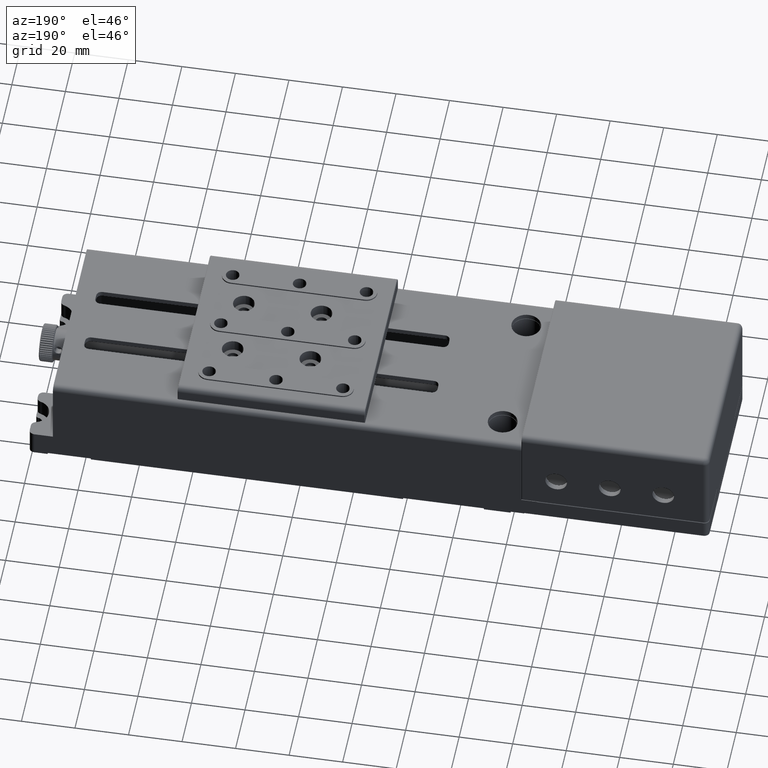
[diagram: clean part render]
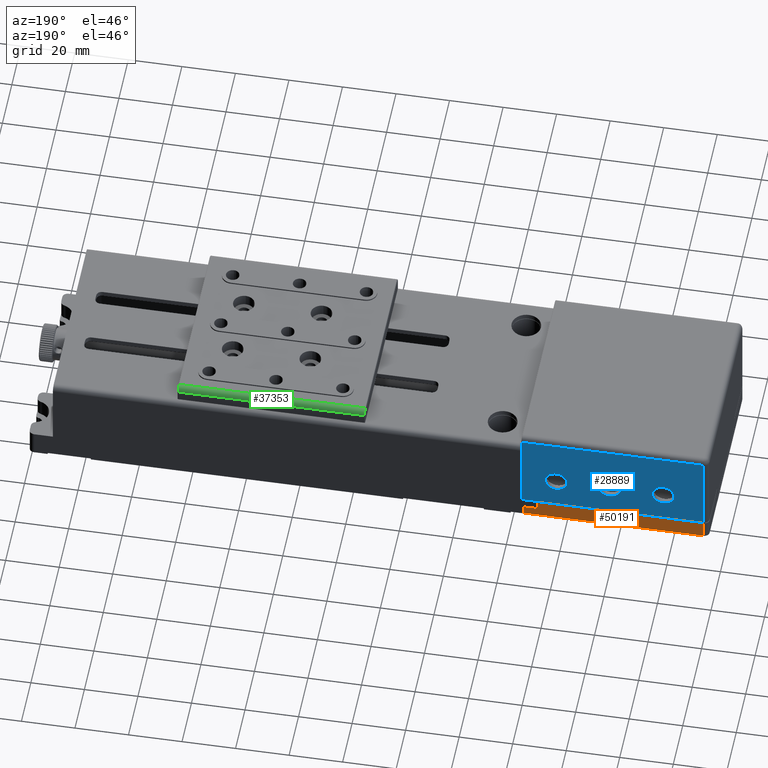
[diagram: same view with three faces highlighted in distinct colors, each labeled with its STEP entity id]
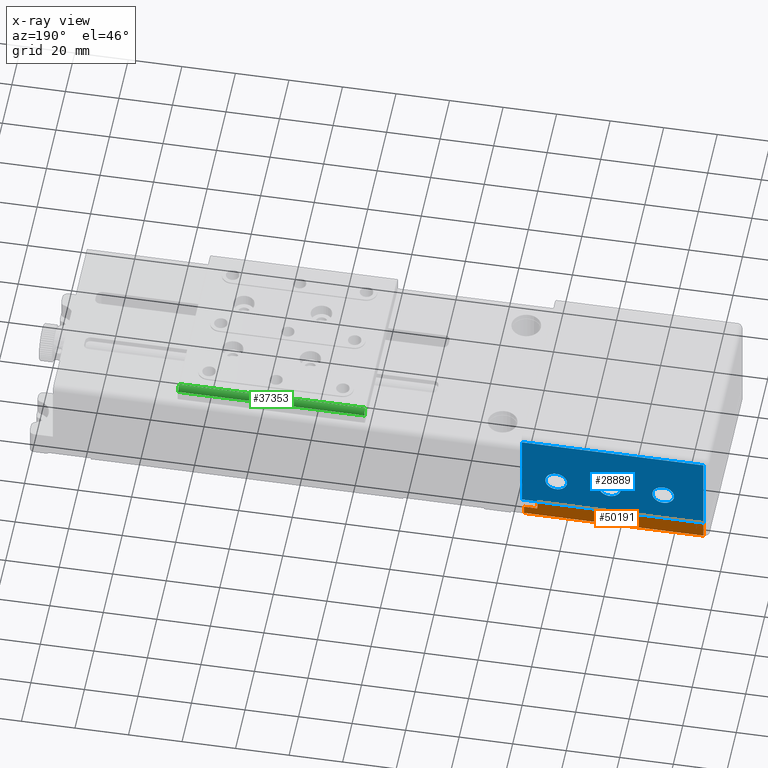
[diagram: x-ray of the same camera — body ghosted, the three highlighted faces saturated]
A machine part, auxiliary view with three faces highlighted in distinct colors.
The next image is the same camera in x-ray (body ghosted, the three faces saturated) — at least one of them is partly hidden behind the body in this view.
Their STEP definitions:

[orange] entity #50191 — the highlighted planar face has unit normal (-0, -1, 0).
#337 = CARTESIAN_POINT ( 'NONE',  ( -151.4252599814024904, 27.53080254974724994, 1.800000000000000044 ) ) ;
#6512 = DIRECTION ( 'NONE',  ( -1.000000000000000000, 1.665334536937734811E-16, 0.000000000000000000 ) ) ;
#7550 = FACE_OUTER_BOUND ( 'NONE', #31158, .T. ) ;
#7726 = CARTESIAN_POINT ( 'NONE',  ( -151.4252599814024904, 27.53080254974724994, -4.799999999999999822 ) ) ;
#9102 = LINE ( 'NONE', #60808, #10324 ) ;
#10324 = VECTOR ( 'NONE', #30270, 1000.000000000000000 ) ;
#12474 = EDGE_CURVE ( 'NONE', #27321, #25437, #15136, .T. ) ;
#13552 = EDGE_CURVE ( 'NONE', #51105, #53263, #31952, .T. ) ;
#15136 = LINE ( 'NONE', #20697, #52377 ) ;
#15200 = VERTEX_POINT ( 'NONE', #68681 ) ;
#18402 = CARTESIAN_POINT ( 'NONE',  ( -84.42525998140229149, 27.53080254974724994, -1.500000000000000000 ) ) ;
#20697 = CARTESIAN_POINT ( 'NONE',  ( -89.42525998140230570, 27.53080254974724994, -5.000000000000000000 ) ) ;
#22549 = EDGE_CURVE ( 'NONE', #36892, #15200, #49562, .T. ) ;
#22868 = DIRECTION ( 'NONE',  ( -1.398089456019985815E-17, 4.930380657631319405E-32, 1.000000000000000000 ) ) ;
#22923 = DIRECTION ( 'NONE',  ( -1.000000000000000000, 1.224646799147351975E-16, -1.398089456019987972E-17 ) ) ;
#24046 = CARTESIAN_POINT ( 'NONE',  ( -84.42525998140229149, 27.53080254974724994, -4.799999999999999822 ) ) ;
#24617 = ORIENTED_EDGE ( 'NONE', *, *, #22549, .F. ) ;
#24857 = VECTOR ( 'NONE', #48580, 1000.000000000000000 ) ;
#25437 = VERTEX_POINT ( 'NONE', #51427 ) ;
#27321 = VERTEX_POINT ( 'NONE', #43081 ) ;
#29024 = ORIENTED_EDGE ( 'NONE', *, *, #13552, .T. ) ;
#29498 = DIRECTION ( 'NONE',  ( 1.000000000000000000, 8.662007579507139761E-33, 1.398089456019987972E-17 ) ) ;
#30270 = DIRECTION ( 'NONE',  ( -1.000000000000000000, -8.662007579507139761E-33, -1.398089456019987972E-17 ) ) ;
#31158 = EDGE_LOOP ( 'NONE', ( #24617, #56819, #29024, #67636, #33511, #49512 ) ) ;
#31952 = LINE ( 'NONE', #53100, #24857 ) ;
#32891 = CARTESIAN_POINT ( 'NONE',  ( -89.42525998140230570, 27.53080254974724994, -5.000000000000000000 ) ) ;
#33511 = ORIENTED_EDGE ( 'NONE', *, *, #12474, .F. ) ;
#36892 = VERTEX_POINT ( 'NONE', #24046 ) ;
#37204 = EDGE_CURVE ( 'NONE', #15200, #27321, #43737, .T. ) ;
#43081 = CARTESIAN_POINT ( 'NONE',  ( -89.42525998140230570, 27.53080254974724994, -1.500000000000000000 ) ) ;
#43737 = LINE ( 'NONE', #18402, #46882 ) ;
#44590 = AXIS2_PLACEMENT_3D ( 'NONE', #32891, #54050, #6512 ) ;
#45899 = EDGE_CURVE ( 'NONE', #53263, #25437, #50992, .T. ) ;
#46882 = VECTOR ( 'NONE', #22923, 1000.000000000000000 ) ;
#48580 = DIRECTION ( 'NONE',  ( -1.398089456019985815E-17, 4.930380657631319405E-32, 1.000000000000000000 ) ) ;
#49512 = ORIENTED_EDGE ( 'NONE', *, *, #37204, .F. ) ;
#49562 = LINE ( 'NONE', #55116, #54207 ) ;
#50191 = ADVANCED_FACE ( 'NONE', ( #7550 ), #64472, .F. ) ;
#50992 = LINE ( 'NONE', #60725, #63048 ) ;
#51049 = EDGE_CURVE ( 'NONE', #36892, #51105, #9102, .T. ) ;
#51105 = VERTEX_POINT ( 'NONE', #7726 ) ;
#51427 = CARTESIAN_POINT ( 'NONE',  ( -89.42525998140230570, 27.53080254974724994, 1.800000000000000044 ) ) ;
#51555 = DIRECTION ( 'NONE',  ( -1.398089456019985815E-17, 4.930380657631319405E-32, 1.000000000000000000 ) ) ;
#52377 = VECTOR ( 'NONE', #51555, 1000.000000000000000 ) ;
#53100 = CARTESIAN_POINT ( 'NONE',  ( -151.4252599814024904, 27.53080254974724994, -5.000000000000000000 ) ) ;
#53263 = VERTEX_POINT ( 'NONE', #337 ) ;
#54050 = DIRECTION ( 'NONE',  ( -1.665334536937734811E-16, -1.000000000000000000, 4.697551991947469531E-32 ) ) ;
#54207 = VECTOR ( 'NONE', #22868, 1000.000000000000000 ) ;
#55116 = CARTESIAN_POINT ( 'NONE',  ( -84.42525998140229149, 27.53080254974724994, -1.500000000000000000 ) ) ;
#56819 = ORIENTED_EDGE ( 'NONE', *, *, #51049, .T. ) ;
#60725 = CARTESIAN_POINT ( 'NONE',  ( -89.42525998140230570, 27.53080254974724994, 1.800000000000000044 ) ) ;
#60808 = CARTESIAN_POINT ( 'NONE',  ( -151.4252599814024904, 27.53080254974724994, -4.799999999999999822 ) ) ;
#63048 = VECTOR ( 'NONE', #29498, 1000.000000000000000 ) ;
#64472 = PLANE ( 'NONE',  #44590 ) ;
#67636 = ORIENTED_EDGE ( 'NONE', *, *, #45899, .T. ) ;
#68681 = CARTESIAN_POINT ( 'NONE',  ( -84.42525998140229149, 27.53080254974724994, -1.500000000000000000 ) ) ;

[blue] entity #28889 — the highlighted planar face has unit normal (-0, -1, 0).
#2627 = CARTESIAN_POINT ( 'NONE',  ( -96.42525998140230570, 27.53080254974720020, 14.00000000000000000 ) ) ;
#5189 = AXIS2_PLACEMENT_3D ( 'NONE', #41985, #67002, #19469 ) ;
#5892 = LINE ( 'NONE', #42352, #60204 ) ;
#9383 = EDGE_CURVE ( 'NONE', #54294, #54405, #52197, .T. ) ;
#10109 = DIRECTION ( 'NONE',  ( 0.000000000000000000, 0.000000000000000000, -1.000000000000000000 ) ) ;
#10622 = AXIS2_PLACEMENT_3D ( 'NONE', #31018, #11212, #36214 ) ;
#11212 = DIRECTION ( 'NONE',  ( 2.775557561562890365E-16, 1.000000000000000000, 0.000000000000000000 ) ) ;
#11409 = AXIS2_PLACEMENT_3D ( 'NONE', #57628, #20523, #10109 ) ;
#11464 = CARTESIAN_POINT ( 'NONE',  ( -112.3752599814023938, 27.53080254974724994, 14.00000000000000000 ) ) ;
#11535 = ORIENTED_EDGE ( 'NONE', *, *, #21090, .T. ) ;
#11653 = CARTESIAN_POINT ( 'NONE',  ( -136.4252599814024336, 27.53080254974724994, 14.00000000000000000 ) ) ;
#11930 = CARTESIAN_POINT ( 'NONE',  ( -151.4252599814024904, 27.53080254974724994, 2.200000000000000178 ) ) ;
#12271 = LINE ( 'NONE', #11930, #32631 ) ;
#13067 = DIRECTION ( 'NONE',  ( 0.000000000000000000, 0.000000000000000000, -1.000000000000000000 ) ) ;
#14296 = CARTESIAN_POINT ( 'NONE',  ( -120.4752599814024023, 27.53080254974724994, 14.00000000000000000 ) ) ;
#14757 = CARTESIAN_POINT ( 'NONE',  ( -116.4252599814023910, 27.53080254974724994, 14.00000000000000000 ) ) ;
#16258 = AXIS2_PLACEMENT_3D ( 'NONE', #11653, #48078, #17208 ) ;
#16666 = DIRECTION ( 'NONE',  ( 0.000000000000000000, 0.000000000000000000, -1.000000000000000000 ) ) ;
#17076 = EDGE_CURVE ( 'NONE', #20193, #58904, #5892, .T. ) ;
#17208 = DIRECTION ( 'NONE',  ( 0.000000000000000000, 0.000000000000000000, -1.000000000000000000 ) ) ;
#18448 = AXIS2_PLACEMENT_3D ( 'NONE', #2627, #28672, #13067 ) ;
#19469 = DIRECTION ( 'NONE',  ( -1.000000000000000000, 2.775557561562890365E-16, 0.000000000000000000 ) ) ;
#20193 = VERTEX_POINT ( 'NONE', #58161 ) ;
#20221 = LINE ( 'NONE', #51772, #60807 ) ;
#20523 = DIRECTION ( 'NONE',  ( 2.775557561562890365E-16, 1.000000000000000000, 0.000000000000000000 ) ) ;
#20894 = VERTEX_POINT ( 'NONE', #38971 ) ;
#21090 = EDGE_CURVE ( 'NONE', #61740, #27499, #20221, .T. ) ;
#21115 = ORIENTED_EDGE ( 'NONE', *, *, #66230, .F. ) ;
#22033 = EDGE_CURVE ( 'NONE', #27499, #20193, #46917, .T. ) ;
#23449 = ORIENTED_EDGE ( 'NONE', *, *, #57094, .F. ) ;
#24673 = FACE_BOUND ( 'NONE', #42271, .T. ) ;
#25093 = DIRECTION ( 'NONE',  ( 1.000000000000000000, -2.220446049250315053E-16, 0.000000000000000000 ) ) ;
#25389 = EDGE_CURVE ( 'NONE', #58904, #61740, #12271, .T. ) ;
#25423 = VERTEX_POINT ( 'NONE', #30284 ) ;
#27499 = VERTEX_POINT ( 'NONE', #65614 ) ;
#27813 = ORIENTED_EDGE ( 'NONE', *, *, #9383, .F. ) ;
#28672 = DIRECTION ( 'NONE',  ( 2.775557561562890365E-16, 1.000000000000000000, 0.000000000000000000 ) ) ;
#28889 = ADVANCED_FACE ( 'NONE', ( #35072, #62465, #24673, #30905 ), #46493, .F. ) ;
#28909 = ORIENTED_EDGE ( 'NONE', *, *, #25389, .T. ) ;
#29672 = CARTESIAN_POINT ( 'NONE',  ( -100.4752599814024023, 27.53080254974720020, 14.00000000000000000 ) ) ;
#30142 = EDGE_LOOP ( 'NONE', ( #55317, #23449 ) ) ;
#30284 = CARTESIAN_POINT ( 'NONE',  ( -92.37525998140240802, 27.53080254974720020, 14.00000000000000000 ) ) ;
#30905 = FACE_OUTER_BOUND ( 'NONE', #64063, .T. ) ;
#31018 = CARTESIAN_POINT ( 'NONE',  ( -96.42525998140230570, 27.53080254974720020, 14.00000000000000000 ) ) ;
#31762 = CIRCLE ( 'NONE', #18448, 4.049999999999999822 ) ;
#32631 = VECTOR ( 'NONE', #54582, 1000.000000000000000 ) ;
#35072 = FACE_BOUND ( 'NONE', #59566, .T. ) ;
#35238 = DIRECTION ( 'NONE',  ( 2.775557561562890365E-16, 1.000000000000000000, 0.000000000000000000 ) ) ;
#35609 = CIRCLE ( 'NONE', #66642, 4.049999999999999822 ) ;
#36128 = CIRCLE ( 'NONE', #10622, 4.049999999999999822 ) ;
#36147 = CARTESIAN_POINT ( 'NONE',  ( -151.4252599814024904, 27.53080254974724994, 2.200000000000000178 ) ) ;
#36214 = DIRECTION ( 'NONE',  ( 0.000000000000000000, 0.000000000000000000, -1.000000000000000000 ) ) ;
#37034 = DIRECTION ( 'NONE',  ( 2.775557561562890365E-16, 1.000000000000000000, 0.000000000000000000 ) ) ;
#38782 = CARTESIAN_POINT ( 'NONE',  ( -83.62525998140229433, 27.53080254974720020, 2.200000000000000178 ) ) ;
#38971 = CARTESIAN_POINT ( 'NONE',  ( -132.3752599814021664, 27.53080254974724994, 14.00000000000000000 ) ) ;
#39967 = AXIS2_PLACEMENT_3D ( 'NONE', #68638, #37034, #53331 ) ;
#41322 = CIRCLE ( 'NONE', #11409, 4.049999999999999822 ) ;
#41380 = EDGE_CURVE ( 'NONE', #25423, #55540, #36128, .T. ) ;
#41985 = CARTESIAN_POINT ( 'NONE',  ( -83.42525998140230570, 27.53080254974720020, 2.000000000000000000 ) ) ;
#42271 = EDGE_LOOP ( 'NONE', ( #27813, #53686 ) ) ;
#42352 = CARTESIAN_POINT ( 'NONE',  ( -83.62525998140229433, 27.53080254974720020, 2.000000000000000000 ) ) ;
#44931 = EDGE_CURVE ( 'NONE', #54405, #54294, #35609, .T. ) ;
#45831 = ORIENTED_EDGE ( 'NONE', *, *, #17076, .T. ) ;
#46168 = CIRCLE ( 'NONE', #16258, 4.049999999999999822 ) ;
#46493 = PLANE ( 'NONE',  #5189 ) ;
#46917 = LINE ( 'NONE', #56666, #55196 ) ;
#48078 = DIRECTION ( 'NONE',  ( 2.775557561562890365E-16, 1.000000000000000000, 0.000000000000000000 ) ) ;
#51772 = CARTESIAN_POINT ( 'NONE',  ( -151.4252599814024904, 27.53080254974724994, 2.000000000000000000 ) ) ;
#52197 = CIRCLE ( 'NONE', #39967, 4.049999999999999822 ) ;
#53331 = DIRECTION ( 'NONE',  ( 0.000000000000000000, 0.000000000000000000, -1.000000000000000000 ) ) ;
#53686 = ORIENTED_EDGE ( 'NONE', *, *, #44931, .F. ) ;
#54294 = VERTEX_POINT ( 'NONE', #14296 ) ;
#54405 = VERTEX_POINT ( 'NONE', #11464 ) ;
#54582 = DIRECTION ( 'NONE',  ( -1.000000000000000000, 2.220446049250315053E-16, 0.000000000000000000 ) ) ;
#54928 = VERTEX_POINT ( 'NONE', #68317 ) ;
#55196 = VECTOR ( 'NONE', #25093, 1000.000000000000000 ) ;
#55317 = ORIENTED_EDGE ( 'NONE', *, *, #61624, .F. ) ;
#55540 = VERTEX_POINT ( 'NONE', #29672 ) ;
#55730 = ORIENTED_EDGE ( 'NONE', *, *, #22033, .T. ) ;
#56666 = CARTESIAN_POINT ( 'NONE',  ( -83.42525998140230570, 27.53080254974720020, 32.50000000000000000 ) ) ;
#57074 = DIRECTION ( 'NONE',  ( 0.000000000000000000, 0.000000000000000000, -1.000000000000000000 ) ) ;
#57094 = EDGE_CURVE ( 'NONE', #20894, #54928, #41322, .T. ) ;
#57628 = CARTESIAN_POINT ( 'NONE',  ( -136.4252599814024336, 27.53080254974724994, 14.00000000000000000 ) ) ;
#58161 = CARTESIAN_POINT ( 'NONE',  ( -83.62525998140229433, 27.53080254974720020, 32.50000000000000000 ) ) ;
#58904 = VERTEX_POINT ( 'NONE', #38782 ) ;
#59566 = EDGE_LOOP ( 'NONE', ( #21115, #65860 ) ) ;
#60204 = VECTOR ( 'NONE', #16666, 1000.000000000000000 ) ;
#60807 = VECTOR ( 'NONE', #62531, 1000.000000000000000 ) ;
#61624 = EDGE_CURVE ( 'NONE', #54928, #20894, #46168, .T. ) ;
#61740 = VERTEX_POINT ( 'NONE', #36147 ) ;
#62465 = FACE_BOUND ( 'NONE', #30142, .T. ) ;
#62531 = DIRECTION ( 'NONE',  ( 0.000000000000000000, 0.000000000000000000, 1.000000000000000000 ) ) ;
#64063 = EDGE_LOOP ( 'NONE', ( #55730, #45831, #28909, #11535 ) ) ;
#65614 = CARTESIAN_POINT ( 'NONE',  ( -151.4252599814024904, 27.53080254974724994, 32.50000000000000000 ) ) ;
#65860 = ORIENTED_EDGE ( 'NONE', *, *, #41380, .F. ) ;
#66230 = EDGE_CURVE ( 'NONE', #55540, #25423, #31762, .T. ) ;
#66642 = AXIS2_PLACEMENT_3D ( 'NONE', #14757, #35238, #57074 ) ;
#67002 = DIRECTION ( 'NONE',  ( -2.775557561562890365E-16, -1.000000000000000000, 0.000000000000000000 ) ) ;
#68317 = CARTESIAN_POINT ( 'NONE',  ( -140.4752599814024165, 27.53080254974724994, 14.00000000000000000 ) ) ;
#68638 = CARTESIAN_POINT ( 'NONE',  ( -116.4252599814023910, 27.53080254974724994, 14.00000000000000000 ) ) ;

[green] entity #37353 — the highlighted cylindrical surface (edge-blend (fillet) strip) has radius 2 mm, axis along (1, 0, 0).
#2041 = EDGE_CURVE ( 'NONE', #38427, #60865, #47348, .T. ) ;
#2810 = ORIENTED_EDGE ( 'NONE', *, *, #2041, .F. ) ;
#3988 = CARTESIAN_POINT ( 'NONE',  ( 45.25787340962129690, 26.03080254974724994, 34.50000000000000000 ) ) ;
#4039 = VECTOR ( 'NONE', #53143, 1000.000000000000000 ) ;
#4732 = AXIS2_PLACEMENT_3D ( 'NONE', #56887, #34701, #9022 ) ;
#6642 = LINE ( 'NONE', #27807, #4039 ) ;
#7172 = DIRECTION ( 'NONE',  ( 0.000000000000000000, 0.000000000000000000, 1.000000000000000000 ) ) ;
#8149 = CARTESIAN_POINT ( 'NONE',  ( 45.05787340962129406, 24.03080254974724994, 34.50000000000000000 ) ) ;
#9022 = DIRECTION ( 'NONE',  ( 0.000000000000000000, 1.000000000000000000, 0.000000000000000000 ) ) ;
#17602 = CARTESIAN_POINT ( 'NONE',  ( -24.54212659037870026, 24.03080254974729968, 34.50000000000000000 ) ) ;
#20462 = CYLINDRICAL_SURFACE ( 'NONE', #4732, 2.000000000000001776 ) ;
#20659 = CARTESIAN_POINT ( 'NONE',  ( -24.54212659037870026, 24.03080254974729968, 36.50000000000000000 ) ) ;
#21704 = VECTOR ( 'NONE', #46322, 1000.000000000000000 ) ;
#26127 = VERTEX_POINT ( 'NONE', #20659 ) ;
#27807 = CARTESIAN_POINT ( 'NONE',  ( -24.74212659037869955, 24.03080254974729968, 36.50000000000000000 ) ) ;
#28669 = EDGE_CURVE ( 'NONE', #63303, #26127, #6642, .T. ) ;
#31843 = CARTESIAN_POINT ( 'NONE',  ( -24.54212659037870026, 26.03080254974729968, 34.50000000000000000 ) ) ;
#34701 = DIRECTION ( 'NONE',  ( 1.000000000000000000, 0.000000000000000000, 5.551115123125779621E-17 ) ) ;
#37353 = ADVANCED_FACE ( 'NONE', ( #40241 ), #20462, .T. ) ;
#38427 = VERTEX_POINT ( 'NONE', #31843 ) ;
#39632 = EDGE_CURVE ( 'NONE', #38427, #26127, #58070, .T. ) ;
#40241 = FACE_OUTER_BOUND ( 'NONE', #61234, .T. ) ;
#42416 = CIRCLE ( 'NONE', #67982, 2.000000000000001776 ) ;
#44522 = CARTESIAN_POINT ( 'NONE',  ( 45.05787340962129406, 24.03080254974724994, 36.50000000000000000 ) ) ;
#46322 = DIRECTION ( 'NONE',  ( 1.000000000000000000, -3.850658456281935279E-16, 5.551115123125779621E-17 ) ) ;
#47348 = LINE ( 'NONE', #3988, #21704 ) ;
#49881 = ORIENTED_EDGE ( 'NONE', *, *, #50693, .T. ) ;
#50693 = EDGE_CURVE ( 'NONE', #63303, #60865, #42416, .T. ) ;
#50820 = DIRECTION ( 'NONE',  ( -1.000000000000000000, 5.075305255429289718E-16, 0.000000000000000000 ) ) ;
#51575 = AXIS2_PLACEMENT_3D ( 'NONE', #17602, #65815, #7172 ) ;
#52531 = ORIENTED_EDGE ( 'NONE', *, *, #28669, .F. ) ;
#53143 = DIRECTION ( 'NONE',  ( -1.000000000000000000, 3.850658456281935279E-16, -5.551115123125779621E-17 ) ) ;
#53485 = ORIENTED_EDGE ( 'NONE', *, *, #39632, .T. ) ;
#55681 = DIRECTION ( 'NONE',  ( 0.000000000000000000, 0.000000000000000000, -1.000000000000000000 ) ) ;
#56887 = CARTESIAN_POINT ( 'NONE',  ( 10.25787340962131999, 24.03080254974724994, 34.50000000000000000 ) ) ;
#58070 = CIRCLE ( 'NONE', #51575, 2.000000000000001776 ) ;
#60865 = VERTEX_POINT ( 'NONE', #64575 ) ;
#61234 = EDGE_LOOP ( 'NONE', ( #2810, #53485, #52531, #49881 ) ) ;
#63303 = VERTEX_POINT ( 'NONE', #44522 ) ;
#64575 = CARTESIAN_POINT ( 'NONE',  ( 45.05787340962129406, 26.03080254974724994, 34.50000000000000000 ) ) ;
#65815 = DIRECTION ( 'NONE',  ( 1.000000000000000000, -5.075305255429289718E-16, 0.000000000000000000 ) ) ;
#67982 = AXIS2_PLACEMENT_3D ( 'NONE', #8149, #50820, #55681 ) ;